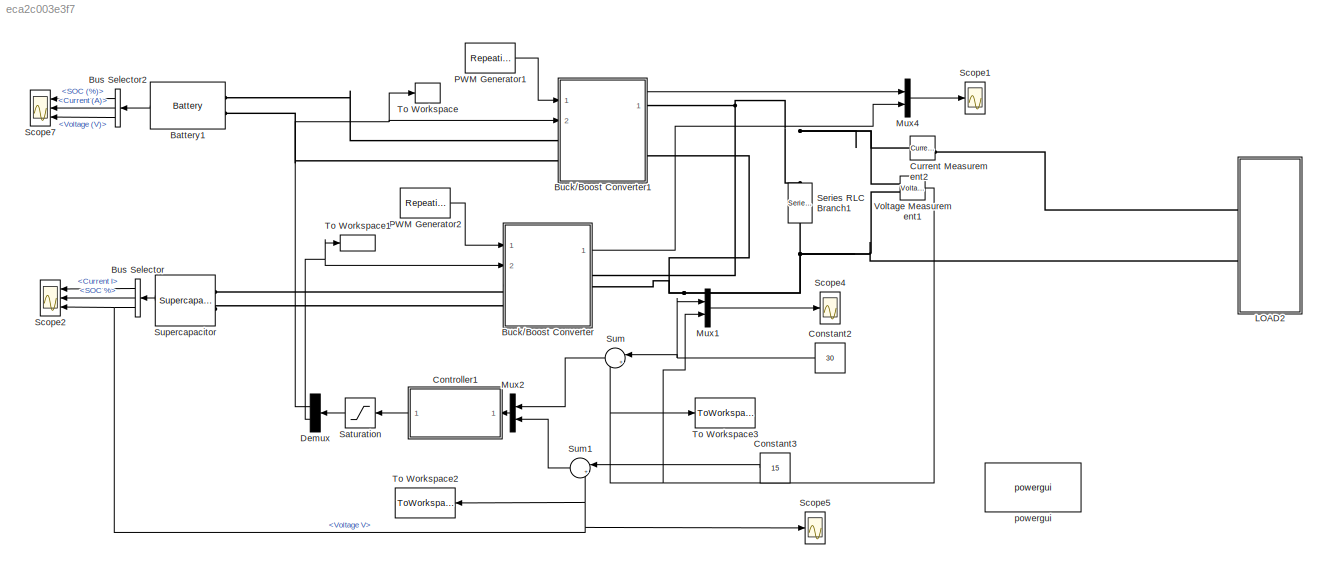
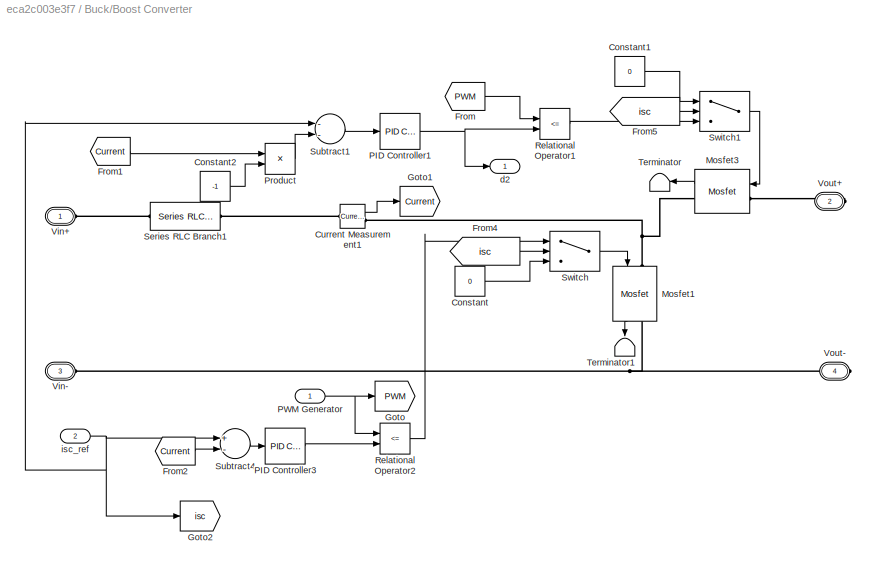
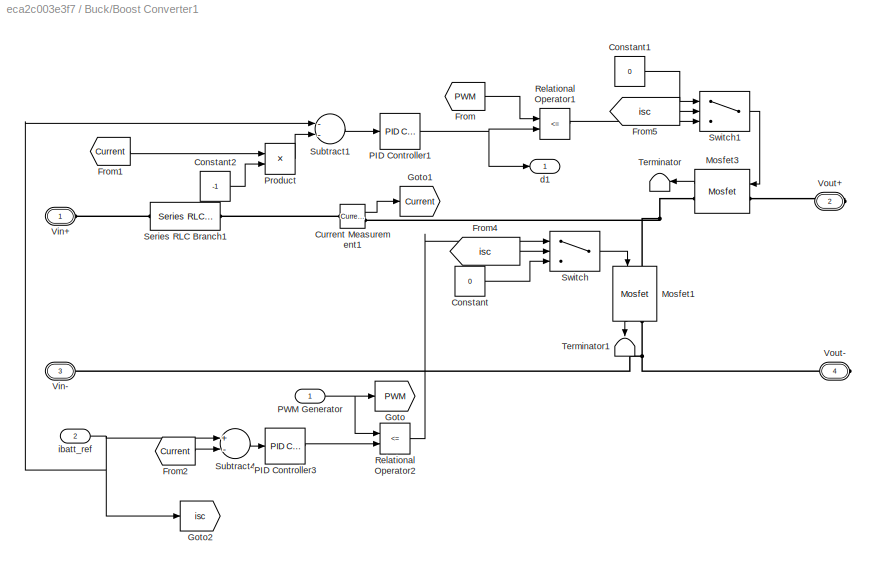
MODEL slx_eca2c003e3f7
KIND model
CONFIG AbsTol = auto
CONFIG EnableMultiTasking = on
CONFIG FixedStep = 2e-5
CONFIG MaxStep = auto
CONFIG MinStep = auto
CONFIG RelTol = 1e-3
CONFIG SampleTimeConstraint = Unconstrained
CONFIG Solver = ode1
CONFIG SolverName = ode1
CONFIG StartTime = 0.0
CONFIG StopTime = 30
BLOCK [Reference] Battery1  REF=electricdrivelib/Extra Sources/Battery
  Ports = [0, 1, 0, 0, 0, 2]
  SourceBlock = electricdrivelib/Extra Sources/Battery
  SourceProductBaseCode = PS
  SourceProductName = Simscape Power Systems
  SourceType = Battery
BLOCK [SubSystem] Buck//Boost Converter
  Ports = [2, 1, 0, 0, 0, 2, 2]
  RequestExecContextInheritance = off
  Variant = off
BLOCK [Constant] Buck//Boost Converter/Constant
  Value = 0
BLOCK [Constant] Buck//Boost Converter/Constant1
  Value = 0
BLOCK [Constant] Buck//Boost Converter/Constant2
  Value = -1
BLOCK [Reference] Buck//Boost Converter/Current Measurement1  REF=powerlib/Measurements/Current Measurement
  Ports = [0, 1, 0, 0, 0, 1, 1]
  SourceBlock = powerlib/Measurements/Current Measurement
  SourceProductBaseCode = PS
  SourceProductName = Simscape Power Systems
  SourceType = Current Measurement
BLOCK [From] Buck//Boost Converter/From
  GotoTag = PWM
BLOCK [From] Buck//Boost Converter/From1
  GotoTag = Current
BLOCK [From] Buck//Boost Converter/From2
  GotoTag = Current
BLOCK [From] Buck//Boost Converter/From4
  GotoTag = isc
BLOCK [From] Buck//Boost Converter/From5
  GotoTag = isc
BLOCK [Goto] Buck//Boost Converter/Goto
  GotoTag = PWM
BLOCK [Goto] Buck//Boost Converter/Goto1
  GotoTag = Current
BLOCK [Goto] Buck//Boost Converter/Goto2
  GotoTag = isc
BLOCK [Reference] Buck//Boost Converter/Mosfet1  REF=powerlib/Power
Electronics/Mosfet
  Ports = [1, 1, 0, 0, 0, 1, 1]
  SourceBlock = powerlib/Power\nElectronics/Mosfet
  SourceProductBaseCode = PS
  SourceProductName = Simscape Power Systems
  SourceType = Mosfet
BLOCK [Reference] Buck//Boost Converter/Mosfet3  REF=powerlib/Power
Electronics/Mosfet
  Ports = [1, 1, 0, 0, 0, 1, 1]
  SourceBlock = powerlib/Power\nElectronics/Mosfet
  SourceProductBaseCode = PS
  SourceProductName = Simscape Power Systems
  SourceType = Mosfet
BLOCK [Reference] Buck//Boost Converter/PID Controller1  REF=simulink/Continuous/PID Controller
  Ports = [1, 1]
  SourceBlock = simulink/Continuous/PID Controller
  SourceProductBaseCode = SL
  SourceProductName = Simulink
  SourceType = PID 1dof
BLOCK [Reference] Buck//Boost Converter/PID Controller3  REF=simulink/Continuous/PID Controller
  Ports = [1, 1]
  SourceBlock = simulink/Continuous/PID Controller
  SourceProductBaseCode = SL
  SourceProductName = Simulink
  SourceType = PID 1dof
BLOCK [Inport] Buck//Boost Converter/PWM Generator
  IconDisplay = Port number
BLOCK [Product] Buck//Boost Converter/Product
  InputSameDT = off
  OutDataTypeStr = Inherit: Inherit via internal rule
  Ports = [2, 1]
  SaturateOnIntegerOverflow = off
BLOCK [RelationalOperator] Buck//Boost Converter/Relational Operator1
  InputSameDT = off
  Operator = <=
  OutDataTypeStr = boolean
  Ports = [2, 1]
BLOCK [RelationalOperator] Buck//Boost Converter/Relational Operator2
  InputSameDT = off
  Operator = <=
  OutDataTypeStr = boolean
  Ports = [2, 1]
BLOCK [Reference] Buck//Boost Converter/Series RLC Branch1  REF=powerlib/Elements/Series RLC Branch
  Ports = [0, 0, 0, 0, 0, 1, 1]
  SourceBlock = powerlib/Elements/Series RLC Branch
  SourceProductBaseCode = PS
  SourceProductName = Simscape Power Systems
  SourceType = Series RLC Branch
BLOCK [Sum] Buck//Boost Converter/Subtract1
  InputSameDT = off
  Inputs = --
  OutDataTypeStr = Inherit: Inherit via internal rule
  Ports = [2, 1]
  SaturateOnIntegerOverflow = off
BLOCK [Sum] Buck//Boost Converter/Subtract4
  InputSameDT = off
  Inputs = +-
  OutDataTypeStr = Inherit: Inherit via internal rule
  Ports = [2, 1]
  SaturateOnIntegerOverflow = off
BLOCK [Switch] Buck//Boost Converter/Switch
  Criteria = u2 > Threshold
  InputSameDT = off
  SaturateOnIntegerOverflow = off
BLOCK [Switch] Buck//Boost Converter/Switch1
  Criteria = u2 > Threshold
  InputSameDT = off
  SaturateOnIntegerOverflow = off
BLOCK [Terminator] Buck//Boost Converter/Terminator
BLOCK [Terminator] Buck//Boost Converter/Terminator1
BLOCK [PMIOPort] Buck//Boost Converter/Vin+
  Port = 1
  Side = Left
  Tag = PMCPort
BLOCK [PMIOPort] Buck//Boost Converter/Vin-
  Port = 3
  Side = Left
  Tag = PMCPort
BLOCK [PMIOPort] Buck//Boost Converter/Vout+
  Port = 2
  Side = Right
  Tag = PMCPort
BLOCK [PMIOPort] Buck//Boost Converter/Vout-
  Port = 4
  Side = Right
  Tag = PMCPort
BLOCK [Outport] Buck//Boost Converter/d2
  IconDisplay = Port number
BLOCK [Inport] Buck//Boost Converter/isc_ref
  IconDisplay = Port number
  Port = 2
BLOCK [SubSystem] Buck//Boost Converter1
  Ports = [2, 1, 0, 0, 0, 2, 2]
  RequestExecContextInheritance = off
  Variant = off
BLOCK [Constant] Buck//Boost Converter1/Constant
  Value = 0
BLOCK [Constant] Buck//Boost Converter1/Constant1
  Value = 0
BLOCK [Constant] Buck//Boost Converter1/Constant2
  Value = -1
BLOCK [Reference] Buck//Boost Converter1/Current Measurement1  REF=powerlib/Measurements/Current Measurement
  Ports = [0, 1, 0, 0, 0, 1, 1]
  SourceBlock = powerlib/Measurements/Current Measurement
  SourceProductBaseCode = PS
  SourceProductName = Simscape Power Systems
  SourceType = Current Measurement
BLOCK [From] Buck//Boost Converter1/From
  GotoTag = PWM
BLOCK [From] Buck//Boost Converter1/From1
  GotoTag = Current
BLOCK [From] Buck//Boost Converter1/From2
  GotoTag = Current
BLOCK [From] Buck//Boost Converter1/From4
  GotoTag = isc
BLOCK [From] Buck//Boost Converter1/From5
  GotoTag = isc
BLOCK [Goto] Buck//Boost Converter1/Goto
  GotoTag = PWM
BLOCK [Goto] Buck//Boost Converter1/Goto1
  GotoTag = Current
BLOCK [Goto] Buck//Boost Converter1/Goto2
  GotoTag = isc
BLOCK [Reference] Buck//Boost Converter1/Mosfet1  REF=powerlib/Power
Electronics/Mosfet
  Ports = [1, 1, 0, 0, 0, 1, 1]
  SourceBlock = powerlib/Power\nElectronics/Mosfet
  SourceProductBaseCode = PS
  SourceProductName = Simscape Power Systems
  SourceType = Mosfet
BLOCK [Reference] Buck//Boost Converter1/Mosfet3  REF=powerlib/Power
Electronics/Mosfet
  Ports = [1, 1, 0, 0, 0, 1, 1]
  SourceBlock = powerlib/Power\nElectronics/Mosfet
  SourceProductBaseCode = PS
  SourceProductName = Simscape Power Systems
  SourceType = Mosfet
BLOCK [Reference] Buck//Boost Converter1/PID Controller1  REF=simulink/Continuous/PID Controller
  Ports = [1, 1]
  SourceBlock = simulink/Continuous/PID Controller
  SourceProductBaseCode = SL
  SourceProductName = Simulink
  SourceType = PID 1dof
BLOCK [Reference] Buck//Boost Converter1/PID Controller3  REF=simulink/Continuous/PID Controller
  Ports = [1, 1]
  SourceBlock = simulink/Continuous/PID Controller
  SourceProductBaseCode = SL
  SourceProductName = Simulink
  SourceType = PID 1dof
BLOCK [Inport] Buck//Boost Converter1/PWM Generator
  IconDisplay = Port number
BLOCK [Product] Buck//Boost Converter1/Product
  InputSameDT = off
  OutDataTypeStr = Inherit: Inherit via internal rule
  Ports = [2, 1]
  SaturateOnIntegerOverflow = off
BLOCK [RelationalOperator] Buck//Boost Converter1/Relational Operator1
  InputSameDT = off
  Operator = <=
  OutDataTypeStr = boolean
  Ports = [2, 1]
BLOCK [RelationalOperator] Buck//Boost Converter1/Relational Operator2
  InputSameDT = off
  Operator = <=
  OutDataTypeStr = boolean
  Ports = [2, 1]
BLOCK [Reference] Buck//Boost Converter1/Series RLC Branch1  REF=powerlib/Elements/Series RLC Branch
  Ports = [0, 0, 0, 0, 0, 1, 1]
  SourceBlock = powerlib/Elements/Series RLC Branch
  SourceProductBaseCode = PS
  SourceProductName = Simscape Power Systems
  SourceType = Series RLC Branch
BLOCK [Sum] Buck//Boost Converter1/Subtract1
  InputSameDT = off
  Inputs = --
  OutDataTypeStr = Inherit: Inherit via internal rule
  Ports = [2, 1]
  SaturateOnIntegerOverflow = off
BLOCK [Sum] Buck//Boost Converter1/Subtract4
  InputSameDT = off
  Inputs = +-
  OutDataTypeStr = Inherit: Inherit via internal rule
  Ports = [2, 1]
  SaturateOnIntegerOverflow = off
BLOCK [Switch] Buck//Boost Converter1/Switch
  Criteria = u2 > Threshold
  InputSameDT = off
  SaturateOnIntegerOverflow = off
BLOCK [Switch] Buck//Boost Converter1/Switch1
  Criteria = u2 > Threshold
  InputSameDT = off
  SaturateOnIntegerOverflow = off
BLOCK [Terminator] Buck//Boost Converter1/Terminator
BLOCK [Terminator] Buck//Boost Converter1/Terminator1
BLOCK [PMIOPort] Buck//Boost Converter1/Vin+
  Port = 1
  Side = Left
  Tag = PMCPort
BLOCK [PMIOPort] Buck//Boost Converter1/Vin-
  Port = 3
  Side = Left
  Tag = PMCPort
BLOCK [PMIOPort] Buck//Boost Converter1/Vout+
  Port = 2
  Side = Right
  Tag = PMCPort
BLOCK [PMIOPort] Buck//Boost Converter1/Vout-
  Port = 4
  Side = Right
  Tag = PMCPort
BLOCK [Outport] Buck//Boost Converter1/d1
  IconDisplay = Port number
BLOCK [Inport] Buck//Boost Converter1/ibatt_ref
  IconDisplay = Port number
  Port = 2
BLOCK [BusSelector] Bus Selector
  OutputAsBus = off
  OutputSignals = Current I,SOC %,Voltage V
  Ports = [1, 3]
BLOCK [BusSelector] Bus Selector2
  OutputAsBus = off
  OutputSignals = SOC (%),Current (A),Voltage (V)
  Ports = [1, 3]
BLOCK [Constant] Constant2
  Value = 30
BLOCK [Constant] Constant3
  Value = 15
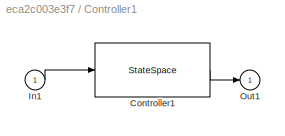
BLOCK [SubSystem] Controller1
  Ports = [1, 1]
  RequestExecContextInheritance = off
  Variant = off
BLOCK [StateSpace] Controller1/Controller1
  A = ae
  B = be
  C = ce
  D = de
  InitialCondition = 0
  Ports = [1, 1]
BLOCK [Inport] Controller1/In1
  IconDisplay = Port number
BLOCK [Outport] Controller1/Out1
  IconDisplay = Port number
  InitialOutput = 0
BLOCK [Reference] Current Measurement2  REF=powerlib/Measurements/Current Measurement
  Ports = [0, 1, 0, 0, 0, 1, 1]
  SourceBlock = powerlib/Measurements/Current Measurement
  SourceProductBaseCode = PS
  SourceProductName = Simscape Power Systems
  SourceType = Current Measurement
BLOCK [Demux] Demux
  DisplayOption = bar
  Outputs = 2
  Ports = [1, 2]
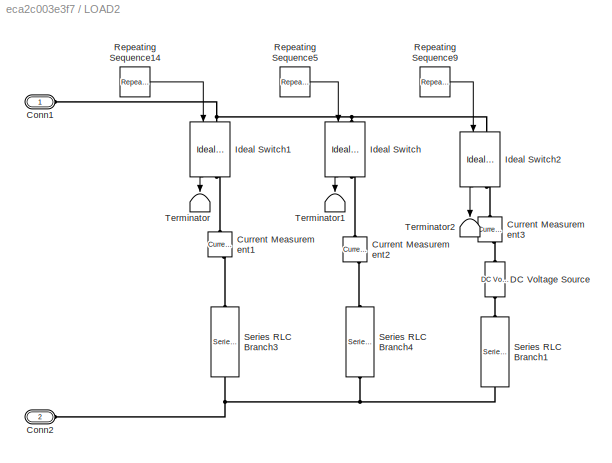
BLOCK [SubSystem] LOAD2
  Ports = [0, 0, 0, 0, 0, 2]
  RequestExecContextInheritance = off
  Variant = off
BLOCK [PMIOPort] LOAD2/Conn1
  Port = 1
  Side = Left
BLOCK [PMIOPort] LOAD2/Conn2
  Port = 2
  Side = Left
BLOCK [Reference] LOAD2/Current Measurement1  REF=powerlib/Measurements/Current Measurement
  Ports = [0, 1, 0, 0, 0, 1, 1]
  SourceBlock = powerlib/Measurements/Current Measurement
  SourceProductBaseCode = PS
  SourceProductName = Simscape Power Systems
  SourceType = Current Measurement
BLOCK [Reference] LOAD2/Current Measurement2  REF=powerlib/Measurements/Current Measurement
  Ports = [0, 1, 0, 0, 0, 1, 1]
  SourceBlock = powerlib/Measurements/Current Measurement
  SourceProductBaseCode = PS
  SourceProductName = Simscape Power Systems
  SourceType = Current Measurement
BLOCK [Reference] LOAD2/Current Measurement3  REF=powerlib/Measurements/Current Measurement
  Ports = [0, 1, 0, 0, 0, 1, 1]
  SourceBlock = powerlib/Measurements/Current Measurement
  SourceProductBaseCode = PS
  SourceProductName = Simscape Power Systems
  SourceType = Current Measurement
BLOCK [Reference] LOAD2/DC Voltage Source  REF=powerlib/Electrical
Sources/DC Voltage Source
  Ports = [0, 0, 0, 0, 0, 1, 1]
  SourceBlock = powerlib/Electrical\nSources/DC Voltage Source
  SourceProductBaseCode = PS
  SourceProductName = Simscape Power Systems
  SourceType = DC Voltage Source
BLOCK [Reference] LOAD2/Ideal Switch  REF=powerlib/Power
Electronics/Ideal Switch
  Ports = [1, 1, 0, 0, 0, 1, 1]
  SourceBlock = powerlib/Power\nElectronics/Ideal Switch
  SourceProductBaseCode = PS
  SourceProductName = Simscape Power Systems
  SourceType = Ideal Switch
BLOCK [Reference] LOAD2/Ideal Switch1  REF=powerlib/Power
Electronics/Ideal Switch
  Ports = [1, 1, 0, 0, 0, 1, 1]
  SourceBlock = powerlib/Power\nElectronics/Ideal Switch
  SourceProductBaseCode = PS
  SourceProductName = Simscape Power Systems
  SourceType = Ideal Switch
BLOCK [Reference] LOAD2/Ideal Switch2  REF=powerlib/Power
Electronics/Ideal Switch
  Ports = [1, 1, 0, 0, 0, 1, 1]
  SourceBlock = powerlib/Power\nElectronics/Ideal Switch
  SourceProductBaseCode = PS
  SourceProductName = Simscape Power Systems
  SourceType = Ideal Switch
BLOCK [Reference] LOAD2/Repeating Sequence14  REF=simulink/Sources/Repeating
Sequence
  Ports = [0, 1]
  SourceBlock = simulink/Sources/Repeating\nSequence
  SourceProductBaseCode = SL
  SourceProductName = Simulink
  SourceType = Repeating table
BLOCK [Reference] LOAD2/Repeating Sequence5  REF=simulink/Sources/Repeating
Sequence
  Ports = [0, 1]
  SourceBlock = simulink/Sources/Repeating\nSequence
  SourceProductBaseCode = SL
  SourceProductName = Simulink
  SourceType = Repeating table
BLOCK [Reference] LOAD2/Repeating Sequence9  REF=simulink/Sources/Repeating
Sequence
  Ports = [0, 1]
  SourceBlock = simulink/Sources/Repeating\nSequence
  SourceProductBaseCode = SL
  SourceProductName = Simulink
  SourceType = Repeating table
BLOCK [Reference] LOAD2/Series RLC Branch1  REF=powerlib/Elements/Series RLC Branch
  Ports = [0, 0, 0, 0, 0, 1, 1]
  SourceBlock = powerlib/Elements/Series RLC Branch
  SourceProductBaseCode = PS
  SourceProductName = Simscape Power Systems
  SourceType = Series RLC Branch
BLOCK [Reference] LOAD2/Series RLC Branch3  REF=powerlib/Elements/Series RLC Branch
  Ports = [0, 0, 0, 0, 0, 1, 1]
  SourceBlock = powerlib/Elements/Series RLC Branch
  SourceProductBaseCode = PS
  SourceProductName = Simscape Power Systems
  SourceType = Series RLC Branch
BLOCK [Reference] LOAD2/Series RLC Branch4  REF=powerlib/Elements/Series RLC Branch
  Ports = [0, 0, 0, 0, 0, 1, 1]
  SourceBlock = powerlib/Elements/Series RLC Branch
  SourceProductBaseCode = PS
  SourceProductName = Simscape Power Systems
  SourceType = Series RLC Branch
BLOCK [Terminator] LOAD2/Terminator
BLOCK [Terminator] LOAD2/Terminator1
BLOCK [Terminator] LOAD2/Terminator2
BLOCK [Mux] Mux1
  DisplayOption = bar
  Inputs = 2
  Ports = [2, 1]
BLOCK [Mux] Mux2
  DisplayOption = bar
  Inputs = 2
  Ports = [2, 1]
BLOCK [Mux] Mux4
  DisplayOption = bar
  Inputs = 2
  Ports = [2, 1]
BLOCK [Reference] PWM Generator1  REF=simulink/Sources/Repeating
Sequence
  Ports = [0, 1]
  SourceBlock = simulink/Sources/Repeating\nSequence
  SourceProductBaseCode = SL
  SourceProductName = Simulink
  SourceType = Repeating table
BLOCK [Reference] PWM Generator2  REF=simulink/Sources/Repeating
Sequence
  Ports = [0, 1]
  SourceBlock = simulink/Sources/Repeating\nSequence
  SourceProductBaseCode = SL
  SourceProductName = Simulink
  SourceType = Repeating table
BLOCK [Saturate] Saturation
  InputPortMap = u0
  LowerLimit = -6
  Ports = [1, 1]
  UpperLimit = 6
BLOCK [Scope] Scope1
  NumInputPorts = 1
  Ports = [1]
  ScopeSpecificationString = Simulink.scopes.TimeScopeBlockCfg('CurrentConfiguration', extmgr.ConfigurationSet(extmgr.Configuration('Core','General UI',true),extmgr.Configuration('Core','Source UI',true),extmgr.Configuration('Sources','WiredSimulink',true,'DataLogging',true,'DataLoggingVariableName','ScopeData1','DataLoggingSaveFormat','StructureWithTime','DataLoggingDecimation','50','DataLoggingDecimateData',true),extmgr.Con...<+1792ch>
BLOCK [Scope] Scope2
  NumInputPorts = 3
  Ports = [3]
  ScopeSpecificationString = Simulink.scopes.TimeScopeBlockCfg('CurrentConfiguration', extmgr.ConfigurationSet(extmgr.Configuration('Core','General UI',true),extmgr.Configuration('Core','Source UI',true),extmgr.Configuration('Sources','WiredSimulink',true,'DataLogging',true,'DataLoggingVariableName','data_SC_bat_power3','DataLoggingSaveFormat','StructureWithTime','DataLoggingDecimation','50','DataLoggingDecimateData',true),ex...<+3101ch>
BLOCK [Scope] Scope4
  NumInputPorts = 1
  Ports = [1]
  ScopeSpecificationString = Simulink.scopes.TimeScopeBlockCfg('CurrentConfiguration', extmgr.ConfigurationSet(extmgr.Configuration('Core','General UI',true),extmgr.Configuration('Core','Source UI',true),extmgr.Configuration('Sources','WiredSimulink',true,'DataLogging',true,'DataLoggingVariableName','data_SC_bat_power','DataLoggingSaveFormat','StructureWithTime','DataLoggingDecimation','50','DataLoggingDecimateData',true),ext...<+1789ch>
BLOCK [Scope] Scope5
  NumInputPorts = 1
  Ports = [1]
  ScopeSpecificationString = Simulink.scopes.TimeScopeBlockCfg('CurrentConfiguration', extmgr.ConfigurationSet(extmgr.Configuration('Core','General UI',true),extmgr.Configuration('Core','Source UI',true),extmgr.Configuration('Sources','WiredSimulink',true,'DataLogging',true,'DataLoggingVariableName','data_SC_bat_power4','DataLoggingSaveFormat','StructureWithTime','DataLoggingDecimation','50','DataLoggingDecimateData',true),ex...<+1773ch>
BLOCK [Scope] Scope7
  NumInputPorts = 3
  Ports = [3]
  ScopeSpecificationString = Simulink.scopes.TimeScopeBlockCfg('CurrentConfiguration', extmgr.ConfigurationSet(extmgr.Configuration('Core','General UI',true),extmgr.Configuration('Core','Source UI',true),extmgr.Configuration('Sources','WiredSimulink',true,'DataLogging',true,'DataLoggingVariableName','data_SC_bat_power6','DataLoggingSaveFormat','StructureWithTime','DataLoggingDecimation','50','DataLoggingDecimateData',true),ex...<+3112ch>
BLOCK [Reference] Series RLC Branch1  REF=powerlib/Elements/Series RLC Branch
  Ports = [0, 0, 0, 0, 0, 1, 1]
  SourceBlock = powerlib/Elements/Series RLC Branch
  SourceProductBaseCode = PS
  SourceProductName = Simscape Power Systems
  SourceType = Series RLC Branch
BLOCK [Sum] Sum
  IconShape = round
  InputSameDT = off
  Inputs = |+-
  OutDataTypeStr = Inherit: Inherit via internal rule
  Ports = [2, 1]
  SaturateOnIntegerOverflow = off
BLOCK [Sum] Sum1
  IconShape = round
  InputSameDT = off
  Inputs = |+-
  OutDataTypeStr = Inherit: Inherit via internal rule
  Ports = [2, 1]
  SaturateOnIntegerOverflow = off
BLOCK [Reference] Supercapacitor  REF=electricdrivelib/Extra Sources/Supercapacitor
  Ports = [0, 1, 0, 0, 0, 2]
  SourceBlock = electricdrivelib/Extra Sources/Supercapacitor
  SourceProductBaseCode = PS
  SourceProductName = Simscape Power Systems
  SourceType = Supercapacitor
BLOCK [ToWorkspace] To Workspace
  FixptAsFi = on
  MaxDataPoints = inf
  Ports = [1]
  SampleTime = -1
  Save2DSignal = 3-D array (concatenate along third dimension)
  VariableName = ibat
BLOCK [ToWorkspace] To Workspace1
  FixptAsFi = on
  MaxDataPoints = inf
  Ports = [1]
  SampleTime = -1
  Save2DSignal = 3-D array (concatenate along third dimension)
  VariableName = isc
BLOCK [ToWorkspace] To Workspace2
  FixptAsFi = on
  MaxDataPoints = inf
  Ports = [1]
  SampleTime = -1
  Save2DSignal = 3-D array (concatenate along third dimension)
  VariableName = Vsc
BLOCK [ToWorkspace] To Workspace3
  FixptAsFi = on
  MaxDataPoints = inf
  Ports = [1]
  SampleTime = -1
  Save2DSignal = 3-D array (concatenate along third dimension)
  VariableName = Vdc
BLOCK [Reference] Voltage Measurement1  REF=powerlib/Measurements/Voltage Measurement
  Ports = [0, 1, 0, 0, 0, 2]
  SourceBlock = powerlib/Measurements/Voltage Measurement
  SourceProductBaseCode = PS
  SourceProductName = Simscape Power Systems
  SourceType = Voltage Measurement
BLOCK [Reference] powergui  REF=powerlib/powergui
  Ports = []
  Priority = 1
  SourceBlock = powerlib/powergui
  SourceProductBaseCode = PS
  SourceProductName = Simscape Power Systems
  SourceType = PSB option menu block
LINE Battery1:1 -> Bus Selector2:1
LINE Buck//Boost Converter/Constant1:1 -> Buck//Boost Converter/Switch1:1
LINE Buck//Boost Converter/Constant2:1 -> Buck//Boost Converter/Product:2
LINE Buck//Boost Converter/Constant:1 -> Buck//Boost Converter/Switch:3
LINE Buck//Boost Converter/Current Measurement1:1 -> Buck//Boost Converter/Goto1:1
LINE Buck//Boost Converter/From1:1 -> Buck//Boost Converter/Product:1
LINE Buck//Boost Converter/From2:1 -> Buck//Boost Converter/Subtract4:2
LINE Buck//Boost Converter/From4:1 -> Buck//Boost Converter/Switch:2
LINE Buck//Boost Converter/From5:1 -> Buck//Boost Converter/Switch1:2
LINE Buck//Boost Converter/From:1 -> Buck//Boost Converter/Relational Operator1:1
LINE Buck//Boost Converter/Mosfet1:1 -> Buck//Boost Converter/Terminator1:1
LINE Buck//Boost Converter/Mosfet3:1 -> Buck//Boost Converter/Terminator:1
NET Buck//Boost Converter/PID Controller1:1 -> Buck//Boost Converter/Relational Operator1:2, Buck//Boost Converter/d2:1
LINE Buck//Boost Converter/PID Controller3:1 -> Buck//Boost Converter/Relational Operator2:2
NET Buck//Boost Converter/PWM Generator:1 -> Buck//Boost Converter/Goto:1, Buck//Boost Converter/Relational Operator2:1
LINE Buck//Boost Converter/Product:1 -> Buck//Boost Converter/Subtract1:2
LINE Buck//Boost Converter/Relational Operator1:1 -> Buck//Boost Converter/Switch1:3
LINE Buck//Boost Converter/Relational Operator2:1 -> Buck//Boost Converter/Switch:1
LINE Buck//Boost Converter/Subtract1:1 -> Buck//Boost Converter/PID Controller1:1
LINE Buck//Boost Converter/Subtract4:1 -> Buck//Boost Converter/PID Controller3:1
LINE Buck//Boost Converter/Switch1:1 -> Buck//Boost Converter/Mosfet3:1
LINE Buck//Boost Converter/Switch:1 -> Buck//Boost Converter/Mosfet1:1
NET Buck//Boost Converter/isc_ref:1 -> Buck//Boost Converter/Goto2:1, Buck//Boost Converter/Subtract1:1, Buck//Boost Converter/Subtract4:1
LINE Buck//Boost Converter1/Constant1:1 -> Buck//Boost Converter1/Switch1:1
LINE Buck//Boost Converter1/Constant2:1 -> Buck//Boost Converter1/Product:2
LINE Buck//Boost Converter1/Constant:1 -> Buck//Boost Converter1/Switch:3
LINE Buck//Boost Converter1/Current Measurement1:1 -> Buck//Boost Converter1/Goto1:1
LINE Buck//Boost Converter1/From1:1 -> Buck//Boost Converter1/Product:1
LINE Buck//Boost Converter1/From2:1 -> Buck//Boost Converter1/Subtract4:2
LINE Buck//Boost Converter1/From4:1 -> Buck//Boost Converter1/Switch:2
LINE Buck//Boost Converter1/From5:1 -> Buck//Boost Converter1/Switch1:2
LINE Buck//Boost Converter1/From:1 -> Buck//Boost Converter1/Relational Operator1:1
LINE Buck//Boost Converter1/Mosfet1:1 -> Buck//Boost Converter1/Terminator1:1
LINE Buck//Boost Converter1/Mosfet3:1 -> Buck//Boost Converter1/Terminator:1
NET Buck//Boost Converter1/PID Controller1:1 -> Buck//Boost Converter1/Relational Operator1:2, Buck//Boost Converter1/d1:1
LINE Buck//Boost Converter1/PID Controller3:1 -> Buck//Boost Converter1/Relational Operator2:2
NET Buck//Boost Converter1/PWM Generator:1 -> Buck//Boost Converter1/Goto:1, Buck//Boost Converter1/Relational Operator2:1
LINE Buck//Boost Converter1/Product:1 -> Buck//Boost Converter1/Subtract1:2
LINE Buck//Boost Converter1/Relational Operator1:1 -> Buck//Boost Converter1/Switch1:3
LINE Buck//Boost Converter1/Relational Operator2:1 -> Buck//Boost Converter1/Switch:1
LINE Buck//Boost Converter1/Subtract1:1 -> Buck//Boost Converter1/PID Controller1:1
LINE Buck//Boost Converter1/Subtract4:1 -> Buck//Boost Converter1/PID Controller3:1
LINE Buck//Boost Converter1/Switch1:1 -> Buck//Boost Converter1/Mosfet3:1
LINE Buck//Boost Converter1/Switch:1 -> Buck//Boost Converter1/Mosfet1:1
NET Buck//Boost Converter1/ibatt_ref:1 -> Buck//Boost Converter1/Goto2:1, Buck//Boost Converter1/Subtract1:1, Buck//Boost Converter1/Subtract4:1
LINE Buck//Boost Converter1:1 -> Mux4:1
LINE Buck//Boost Converter:1 -> Mux4:2
LINE Bus Selector2:1 -> Scope7:1
LINE Bus Selector2:2 -> Scope7:2
LINE Bus Selector2:3 -> Scope7:3
LINE Bus Selector:1 -> Scope2:1
LINE Bus Selector:2 -> Scope2:2
NET Bus Selector:3 -> Scope2:3, Scope5:1, Sum1:2, To Workspace2:1
NET Constant2:1 -> Mux1:1, Sum:1
LINE Constant3:1 -> Sum1:1
LINE Controller1/Controller1:1 -> Controller1/Out1:1
LINE Controller1/In1:1 -> Controller1/Controller1:1
LINE Controller1:1 -> Saturation:1
NET Demux:1 -> Buck//Boost Converter1:2, To Workspace:1
NET Demux:2 -> Buck//Boost Converter:2, To Workspace1:1
LINE LOAD2/Ideal Switch1:1 -> LOAD2/Terminator:1
LINE LOAD2/Ideal Switch2:1 -> LOAD2/Terminator2:1
LINE LOAD2/Ideal Switch:1 -> LOAD2/Terminator1:1
LINE LOAD2/Repeating Sequence14:1 -> LOAD2/Ideal Switch1:1
LINE LOAD2/Repeating Sequence5:1 -> LOAD2/Ideal Switch:1
LINE LOAD2/Repeating Sequence9:1 -> LOAD2/Ideal Switch2:1
LINE Mux1:1 -> Scope4:1
LINE Mux2:1 -> Controller1:1
LINE Mux4:1 -> Scope1:1
LINE PWM Generator1:1 -> Buck//Boost Converter1:1
LINE PWM Generator2:1 -> Buck//Boost Converter:1
LINE Saturation:1 -> Demux:1
LINE Sum1:1 -> Mux2:2
LINE Sum:1 -> Mux2:1
LINE Supercapacitor:1 -> Bus Selector:1
NET Voltage Measurement1:1 -> Mux1:2, Sum:2, To Workspace3:1
PLINE Battery1:LConn1 -- Buck//Boost Converter1:LConn1
PLINE Battery1:LConn2 -- Buck//Boost Converter1:LConn2
PLINE Buck//Boost Converter/Current Measurement1:LConn1 -- Buck//Boost Converter/Series RLC Branch1:RConn1
PNET net1: Buck//Boost Converter/Current Measurement1:RConn1 -- Buck//Boost Converter/Mosfet1:LConn1 -- Buck//Boost Converter/Mosfet3:RConn1
PNET net2: Buck//Boost Converter/Mosfet1:RConn1 -- Buck//Boost Converter/Vin-:RConn1 -- Buck//Boost Converter/Vout-:RConn1
PLINE Buck//Boost Converter/Mosfet3:LConn1 -- Buck//Boost Converter/Vout+:RConn1
PLINE Buck//Boost Converter/Series RLC Branch1:LConn1 -- Buck//Boost Converter/Vin+:RConn1
PLINE Buck//Boost Converter1/Current Measurement1:LConn1 -- Buck//Boost Converter1/Series RLC Branch1:RConn1
PNET net3: Buck//Boost Converter1/Current Measurement1:RConn1 -- Buck//Boost Converter1/Mosfet1:LConn1 -- Buck//Boost Converter1/Mosfet3:RConn1
PNET net4: Buck//Boost Converter1/Mosfet1:RConn1 -- Buck//Boost Converter1/Vin-:RConn1 -- Buck//Boost Converter1/Vout-:RConn1
PLINE Buck//Boost Converter1/Mosfet3:LConn1 -- Buck//Boost Converter1/Vout+:RConn1
PLINE Buck//Boost Converter1/Series RLC Branch1:LConn1 -- Buck//Boost Converter1/Vin+:RConn1
PNET net5: Buck//Boost Converter1:RConn1 -- Buck//Boost Converter:RConn1 -- Current Measurement2:LConn1 -- Series RLC Branch1:RConn1 -- Voltage Measurement1:LConn1
PNET net6: Buck//Boost Converter1:RConn2 -- Buck//Boost Converter:RConn2 -- LOAD2:LConn2 -- Series RLC Branch1:LConn1 -- Voltage Measurement1:LConn2
PLINE Buck//Boost Converter:LConn1 -- Supercapacitor:LConn1
PLINE Buck//Boost Converter:LConn2 -- Supercapacitor:LConn2
PLINE Current Measurement2:RConn1 -- LOAD2:LConn1
PNET net7: LOAD2/Conn1:RConn1 -- LOAD2/Ideal Switch1:LConn1 -- LOAD2/Ideal Switch2:LConn1 -- LOAD2/Ideal Switch:LConn1
PNET net8: LOAD2/Conn2:RConn1 -- LOAD2/Series RLC Branch1:LConn1 -- LOAD2/Series RLC Branch3:LConn1 -- LOAD2/Series RLC Branch4:LConn1
PLINE LOAD2/Current Measurement1:LConn1 -- LOAD2/Ideal Switch1:RConn1
PLINE LOAD2/Current Measurement1:RConn1 -- LOAD2/Series RLC Branch3:RConn1
PLINE LOAD2/Current Measurement2:LConn1 -- LOAD2/Ideal Switch:RConn1
PLINE LOAD2/Current Measurement2:RConn1 -- LOAD2/Series RLC Branch4:RConn1
PLINE LOAD2/Current Measurement3:LConn1 -- LOAD2/Ideal Switch2:RConn1
PLINE LOAD2/Current Measurement3:RConn1 -- LOAD2/DC Voltage Source:RConn1
PLINE LOAD2/DC Voltage Source:LConn1 -- LOAD2/Series RLC Branch1:RConn1
note: NET lines group one-source signal fan-out (src -> all destinations, sorted); 1:1 wires keep LINE; PNET lines group multi-terminal physical nets as a canonical sorted terminal list (undirected conserving connections); 2-terminal nets keep the pairwise PLINE form
